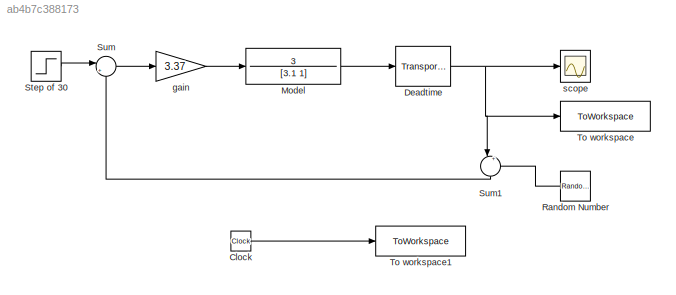
MODEL slx_ab4b7c388173
KIND model
CONFIG AbsTol = auto
CONFIG EnableMultiTasking = off
CONFIG FixedStep = auto
CONFIG MaxStep = auto
CONFIG MinStep = auto
CONFIG RelTol = 1e-3
CONFIG SampleTimeConstraint = Unconstrained
CONFIG SolverName = VariableStepAuto
CONFIG StartTime = 0.0
CONFIG StopTime = 15
BLOCK [Clock] Clock
BLOCK [TransportDelay] Deadtime
  DelayTime = .15*5/60
BLOCK [TransferFcn] Model
  Denominator = [3.1 1]
  Numerator = 3
BLOCK [RandomNumber] Random Number
  SampleTime = 0
  Seed = 61233
  Variance = 0.5
BLOCK [Step] Step of 30
  After = 30
  SampleTime = 0
  Time = 0
BLOCK [Sum] Sum
  Inputs = |+-
BLOCK [Sum] Sum1
  Inputs = |++
  NameLocation = left
BLOCK [ToWorkspace] To workspace
  FixptAsFi = on
  MaxDataPoints = inf
  SampleTime = -1
  SaveFormat = Structure
  VariableName = Y
BLOCK [ToWorkspace] To workspace1
  FixptAsFi = on
  MaxDataPoints = inf
  SampleTime = -1
  SaveFormat = Structure
  VariableName = Time
BLOCK [Gain] gain
  Gain = 3.37
BLOCK [Scope] scope
  Floating = off
  NumInputPorts = 1
  ScopeSpecificationString = Simulink.scopes.TimeScopeBlockCfg('CurrentConfiguration', extmgr.ConfigurationSet(extmgr.Configuration('Core','General UI',true),extmgr.Configuration('Core','Source UI',true),extmgr.Configuration('Sources','WiredSimulink',true),extmgr.Configuration('Visuals','Time Domain',true,'SerializedDisplays',{struct('MinYLimReal','-3.92371','MaxYLimReal','35.31338','YLabelReal','','MinYLimMag','0.00000','Max...<+1463ch>
LINE Clock:1 -> To workspace1:1
NET Deadtime:1 -> Sum1:1, To workspace:1, scope:1
LINE Model:1 -> Deadtime:1
LINE Random Number:1 -> Sum1:2
LINE Step of 30:1 -> Sum:1
LINE Sum1:1 -> Sum:2
LINE Sum:1 -> gain:1
LINE gain:1 -> Model:1
note: NET lines group one-source signal fan-out (src -> all destinations, sorted); 1:1 wires keep LINE
